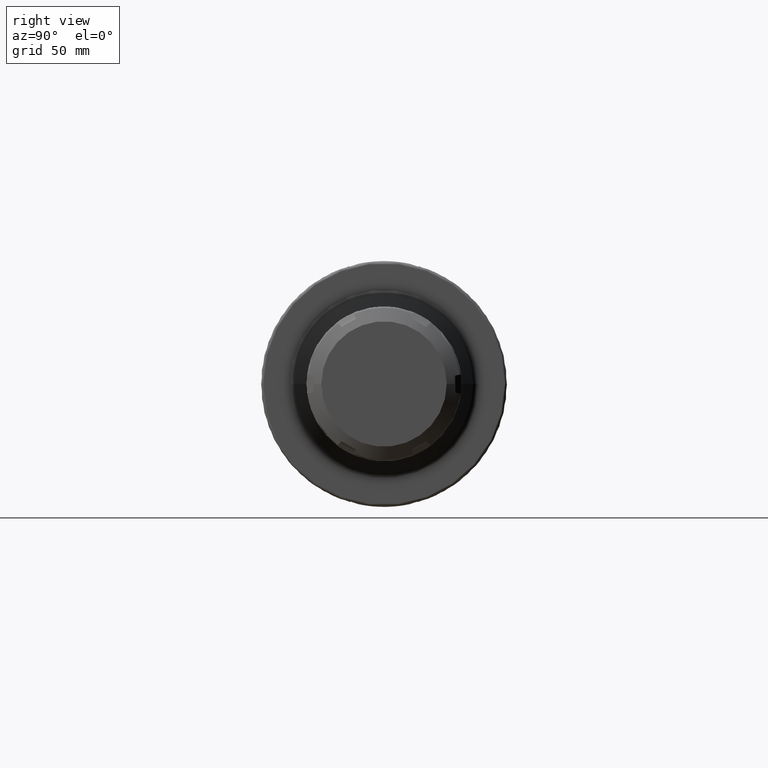
[diagram: clean part render]
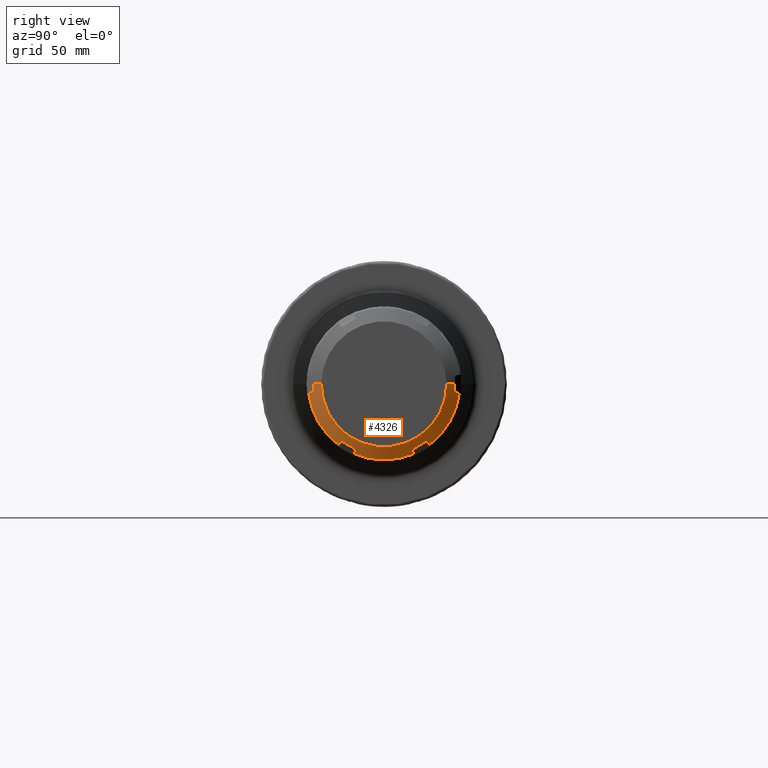
[diagram: same view with one face highlighted and labeled with its STEP entity id]
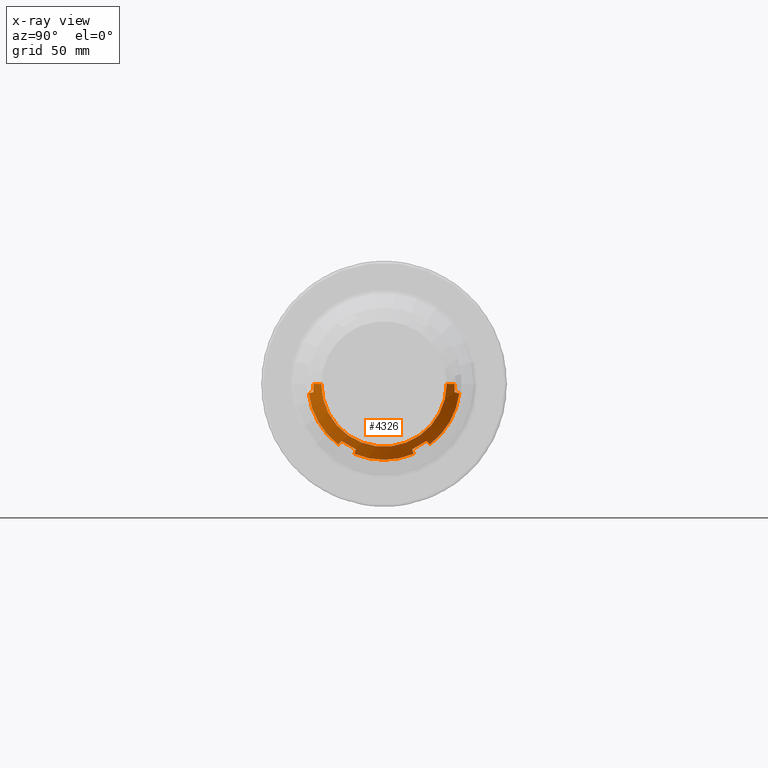
[diagram: x-ray of the same camera — body ghosted, the highlighted face saturated]
A machine part, right view. The second image highlights one B-rep face of the part: STEP entity #4326.
The next image is the same camera in x-ray: the body ghosted, the highlighted face saturated — about 0% of this face is hidden behind the body in this view.
In plain terms, the highlighted conical surface has half-angle 60 deg.
Its self-contained STEP definition (entity closure, byte-faithful):
#3456=CARTESIAN_POINT('',(2.351130782476E1,1.727618510266E1,-2.322323035877E1));
#3457=CARTESIAN_POINT('',(2.332842823305E1,1.749804769833E1,-2.345297580209E1));
#3458=CARTESIAN_POINT('',(2.295978520802E1,1.794515018410E1,-2.391596397947E1));
#3459=CARTESIAN_POINT('',(2.258538211756E1,1.839901028735E1,-2.438594987460E1));
#3460=CARTESIAN_POINT('',(2.239674230313E1,1.862763043938E1,-2.462269297237E1));
#3462=CARTESIAN_POINT('',(2.351130782476E1,1.147381489730E1,-2.657323035877E1));
#3463=CARTESIAN_POINT('',(2.356105051412E1,1.211849164162E1,-2.620102606690E1));
#3464=CARTESIAN_POINT('',(2.362777625606E1,1.340784245763E1,-2.545661902620E1));
#3465=CARTESIAN_POINT('',(2.362777583851E1,1.534217003691E1,-2.433983447760E1));
#3466=CARTESIAN_POINT('',(2.356105010187E1,1.663151370114E1,-2.359543156598E1));
#3467=CARTESIAN_POINT('',(2.351130782476E1,1.727618510266E1,-2.322323035877E1));
#3469=CARTESIAN_POINT('',(2.239674230313E1,1.201006240397E1,-2.844334765900E1));
#3470=CARTESIAN_POINT('',(2.258533438069E1,1.191936989944E1,-2.812706530876E1));
#3471=CARTESIAN_POINT('',(2.295968976826E1,1.173930318813E1,-2.749909805885E1));
#3472=CARTESIAN_POINT('',(2.332838053240E1,1.156187195180E1,-2.688032180249E1));
#3473=CARTESIAN_POINT('',(2.351130782476E1,1.147381489730E1,-2.657323035877E1));
#3475=CARTESIAN_POINT('',(2.239674230313E1,0.E0,0.E0));
#3476=DIRECTION('',(-1.E0,0.E0,0.E0));
#3477=DIRECTION('',(0.E0,3.889898754327E-1,-9.212420294422E-1));
#3478=AXIS2_PLACEMENT_3D('',#3475,#3476,#3477);
#3480=CARTESIAN_POINT('',(2.351130782476E1,-1.147381489730E1,
-2.657323035877E1));
#3481=CARTESIAN_POINT('',(2.332842823305E1,-1.156184898978E1,
-2.688024172443E1));
#3482=CARTESIAN_POINT('',(2.295978520802E1,-1.173925727016E1,
-2.749893792389E1));
#3483=CARTESIAN_POINT('',(2.258538211756E1,-1.191934694315E1,
-2.812698525064E1));
#3484=CARTESIAN_POINT('',(2.239674230313E1,-1.201006240397E1,
-2.844334765900E1));
#3486=CARTESIAN_POINT('',(2.351130782476E1,-1.727618510266E1,
-2.322323035877E1));
#3487=CARTESIAN_POINT('',(2.356105051412E1,-1.663150835835E1,
-2.359543465064E1));
#3488=CARTESIAN_POINT('',(2.362777625606E1,-1.534215754233E1,
-2.433984169135E1));
#3489=CARTESIAN_POINT('',(2.362777583851E1,-1.340782996305E1,
-2.545662623995E1));
#3490=CARTESIAN_POINT('',(2.356105010187E1,-1.211848629883E1,
-2.620102915156E1));
#3491=CARTESIAN_POINT('',(2.351130782476E1,-1.147381489730E1,
-2.657323035877E1));
#3493=CARTESIAN_POINT('',(2.239674230313E1,-1.862763043938E1,
-2.462269297237E1));
#3494=CARTESIAN_POINT('',(2.258533438069E1,-1.839906814157E1,
-2.438600978440E1));
#3495=CARTESIAN_POINT('',(2.295968976826E1,-1.794526590606E1,
-2.391608381307E1));
#3496=CARTESIAN_POINT('',(2.332838053240E1,-1.749810556696E1,
-2.345303572681E1));
#3497=CARTESIAN_POINT('',(2.351130782476E1,-1.727618510266E1,
-2.322323035877E1));
#3499=CARTESIAN_POINT('',(2.239674230313E1,0.E0,0.E0));
#3500=DIRECTION('',(-1.E0,0.E0,0.E0));
#3501=DIRECTION('',(0.E0,-6.033240628145E-1,-7.974961286608E-1));
#3502=AXIS2_PLACEMENT_3D('',#3499,#3500,#3501);
#3504=CARTESIAN_POINT('',(2.351130782476E1,-2.874999999997E1,-3.35E0));
#3505=CARTESIAN_POINT('',(2.332842823305E1,-2.905989668812E1,
-3.427265922344E0));
#3506=CARTESIAN_POINT('',(2.295978520802E1,-2.968440745426E1,
-3.582973944421E0));
#3507=CARTESIAN_POINT('',(2.258538211756E1,-3.031835723049E1,
-3.741035376033E0));
#3508=CARTESIAN_POINT('',(2.239674230313E1,-3.063769284335E1,
-3.820654686622E0));
#3510=CARTESIAN_POINT('',(2.362361162515E1,-2.874999999997E1,0.E0));
#3511=CARTESIAN_POINT('',(2.362361162515E1,-2.874999999997E1,
-3.723033754199E-1));
#3512=CARTESIAN_POINT('',(2.361525781864E1,-2.874999999997E1,
-1.116855572672E0));
#3513=CARTESIAN_POINT('',(2.357773435590E1,-2.874999999997E1,
-2.233506677949E0));
#3514=CARTESIAN_POINT('',(2.353617556265E1,-2.874999999997E1,
-2.977849684408E0));
#3515=CARTESIAN_POINT('',(2.351130782476E1,-2.874999999997E1,-3.35E0));
#3517=DIRECTION('',(-5.E-1,-8.660254037844E-1,0.E0));
#3518=VECTOR('',#3517,3.752776749692E0);
#3519=CARTESIAN_POINT('',(2.55E1,-2.55E1,0.E0));
#3520=LINE('',#3519,#3518);
#3521=CARTESIAN_POINT('',(2.55E1,0.E0,0.E0));
#3522=DIRECTION('',(-1.E0,0.E0,0.E0));
#3523=DIRECTION('',(0.E0,1.E0,0.E0));
#3524=AXIS2_PLACEMENT_3D('',#3521,#3522,#3523);
#3526=DIRECTION('',(-5.E-1,8.660254037844E-1,0.E0));
#3527=VECTOR('',#3526,3.752776749692E0);
#3528=CARTESIAN_POINT('',(2.55E1,2.55E1,0.E0));
#3529=LINE('',#3528,#3527);
#3530=CARTESIAN_POINT('',(2.351130782476E1,2.874999999997E1,-3.35E0));
#3531=CARTESIAN_POINT('',(2.353617695757E1,2.874999999997E1,-2.977828809184E0));
#3532=CARTESIAN_POINT('',(2.357773662637E1,2.874999999997E1,-2.233458033279E0));
#3533=CARTESIAN_POINT('',(2.361525848375E1,2.874999999997E1,-1.116817767542E0));
#3534=CARTESIAN_POINT('',(2.362361162515E1,2.874999999997E1,
-3.722872262064E-1));
#3535=CARTESIAN_POINT('',(2.362361162515E1,2.874999999997E1,0.E0));
#3537=CARTESIAN_POINT('',(2.239674230313E1,3.063769284335E1,-3.820654686622E0));
#3538=CARTESIAN_POINT('',(2.258533438069E1,3.031843804101E1,-3.741055524357E0));
#3539=CARTESIAN_POINT('',(2.295968976826E1,2.968456909419E1,-3.583014245782E0));
#3540=CARTESIAN_POINT('',(2.332838053240E1,2.905997751876E1,-3.427286075687E0));
#3541=CARTESIAN_POINT('',(2.351130782476E1,2.874999999997E1,-3.35E0));
#3543=CARTESIAN_POINT('',(2.239674230313E1,0.E0,0.E0));
#3544=DIRECTION('',(-1.E0,0.E0,0.E0));
#3545=DIRECTION('',(0.E0,9.923139382473E-1,-1.237459007814E-1));
#3546=AXIS2_PLACEMENT_3D('',#3543,#3544,#3545);
#3807=CARTESIAN_POINT('',(2.362361162515E1,-2.874999999997E1,0.E0));
#3874=CARTESIAN_POINT('',(2.362361162515E1,2.874999999997E1,0.E0));
#4164=CARTESIAN_POINT('',(2.55E1,2.55E1,0.E0));
#4165=CARTESIAN_POINT('',(2.55E1,-2.55E1,0.E0));
#4166=VERTEX_POINT('',#4164);
#4167=VERTEX_POINT('',#4165);
#4178=VERTEX_POINT('',#3874);
#4179=VERTEX_POINT('',#3530);
#4180=VERTEX_POINT('',#3537);
#4233=VERTEX_POINT('',#3807);
#4235=VERTEX_POINT('',#3504);
#4236=VERTEX_POINT('',#3508);
#4246=VERTEX_POINT('',#3480);
#4247=VERTEX_POINT('',#3484);
#4248=VERTEX_POINT('',#3486);
#4249=VERTEX_POINT('',#3493);
#4261=VERTEX_POINT('',#3456);
#4262=VERTEX_POINT('',#3460);
#4263=VERTEX_POINT('',#3462);
#4264=VERTEX_POINT('',#3469);
#4288=CARTESIAN_POINT('',(2.394837115156E1,0.E0,0.E0));
#4289=DIRECTION('',(-1.E0,0.E0,0.E0));
#4290=DIRECTION('',(0.E0,1.E0,0.E0));
#4291=AXIS2_PLACEMENT_3D('',#4288,#4289,#4290);
#4292=CONICAL_SURFACE('',#4291,2.818749999998E1,6.E1);
#4294=ORIENTED_EDGE('',*,*,#4293,.F.);
#4296=ORIENTED_EDGE('',*,*,#4295,.F.);
#4298=ORIENTED_EDGE('',*,*,#4297,.F.);
#4300=ORIENTED_EDGE('',*,*,#4299,.T.);
#4302=ORIENTED_EDGE('',*,*,#4301,.F.);
#4304=ORIENTED_EDGE('',*,*,#4303,.F.);
#4306=ORIENTED_EDGE('',*,*,#4305,.F.);
#4308=ORIENTED_EDGE('',*,*,#4307,.T.);
#4310=ORIENTED_EDGE('',*,*,#4309,.F.);
#4312=ORIENTED_EDGE('',*,*,#4311,.F.);
#4314=ORIENTED_EDGE('',*,*,#4313,.F.);
#4315=ORIENTED_EDGE('',*,*,#4281,.F.);
#4317=ORIENTED_EDGE('',*,*,#4316,.T.);
#4319=ORIENTED_EDGE('',*,*,#4318,.F.);
#4321=ORIENTED_EDGE('',*,*,#4320,.F.);
#4323=ORIENTED_EDGE('',*,*,#4322,.T.);
#4324=EDGE_LOOP('',(#4294,#4296,#4298,#4300,#4302,#4304,#4306,#4308,#4310,#4312,
#4314,#4315,#4317,#4319,#4321,#4323));
#4325=FACE_OUTER_BOUND('',#4324,.F.);
#4326=ADVANCED_FACE('',(#4325),#4292,.T.);
#3461=B_SPLINE_CURVE_WITH_KNOTS('',3,(#3456,#3457,#3458,#3459,#3460),
.UNSPECIFIED.,.F.,.F.,(4,1,4),(0.E0,5.E-1,1.E0),.UNSPECIFIED.);
#3468=B_SPLINE_CURVE_WITH_KNOTS('',3,(#3462,#3463,#3464,#3465,#3466,#3467),
.UNSPECIFIED.,.F.,.F.,(4,1,1,4),(0.E0,3.333333333333E-1,6.666666666667E-1,1.E0),
.UNSPECIFIED.);
#3474=B_SPLINE_CURVE_WITH_KNOTS('',3,(#3469,#3470,#3471,#3472,#3473),
.UNSPECIFIED.,.F.,.F.,(4,1,4),(0.E0,5.E-1,1.E0),.UNSPECIFIED.);
#3479=CIRCLE('',#3478,3.087499999997E1);
#3485=B_SPLINE_CURVE_WITH_KNOTS('',3,(#3480,#3481,#3482,#3483,#3484),
.UNSPECIFIED.,.F.,.F.,(4,1,4),(0.E0,5.E-1,1.E0),.UNSPECIFIED.);
#3492=B_SPLINE_CURVE_WITH_KNOTS('',3,(#3486,#3487,#3488,#3489,#3490,#3491),
.UNSPECIFIED.,.F.,.F.,(4,1,1,4),(0.E0,3.333333333333E-1,6.666666666667E-1,1.E0),
.UNSPECIFIED.);
#3498=B_SPLINE_CURVE_WITH_KNOTS('',3,(#3493,#3494,#3495,#3496,#3497),
.UNSPECIFIED.,.F.,.F.,(4,1,4),(0.E0,5.E-1,1.E0),.UNSPECIFIED.);
#3503=CIRCLE('',#3502,3.087499999997E1);
#3509=B_SPLINE_CURVE_WITH_KNOTS('',3,(#3504,#3505,#3506,#3507,#3508),
.UNSPECIFIED.,.F.,.F.,(4,1,4),(0.E0,5.E-1,1.E0),.UNSPECIFIED.);
#3516=B_SPLINE_CURVE_WITH_KNOTS('',3,(#3510,#3511,#3512,#3513,#3514,#3515),
.UNSPECIFIED.,.F.,.F.,(4,1,1,4),(0.E0,3.333333333333E-1,6.666666666667E-1,1.E0),
.UNSPECIFIED.);
#3525=CIRCLE('',#3524,2.55E1);
#3536=B_SPLINE_CURVE_WITH_KNOTS('',3,(#3530,#3531,#3532,#3533,#3534,#3535),
.UNSPECIFIED.,.F.,.F.,(4,1,1,4),(0.E0,3.333333333333E-1,6.666666666667E-1,1.E0),
.UNSPECIFIED.);
#3542=B_SPLINE_CURVE_WITH_KNOTS('',3,(#3537,#3538,#3539,#3540,#3541),
.UNSPECIFIED.,.F.,.F.,(4,1,4),(0.E0,5.E-1,1.E0),.UNSPECIFIED.);
#3547=CIRCLE('',#3546,3.087499999997E1);
#4281=EDGE_CURVE('',#4166,#4167,#3525,.T.);
#4293=EDGE_CURVE('',#4261,#4262,#3461,.T.);
#4295=EDGE_CURVE('',#4263,#4261,#3468,.T.);
#4297=EDGE_CURVE('',#4264,#4263,#3474,.T.);
#4299=EDGE_CURVE('',#4264,#4247,#3479,.T.);
#4301=EDGE_CURVE('',#4246,#4247,#3485,.T.);
#4303=EDGE_CURVE('',#4248,#4246,#3492,.T.);
#4305=EDGE_CURVE('',#4249,#4248,#3498,.T.);
#4307=EDGE_CURVE('',#4249,#4236,#3503,.T.);
#4309=EDGE_CURVE('',#4235,#4236,#3509,.T.);
#4311=EDGE_CURVE('',#4233,#4235,#3516,.T.);
#4313=EDGE_CURVE('',#4167,#4233,#3520,.T.);
#4316=EDGE_CURVE('',#4166,#4178,#3529,.T.);
#4318=EDGE_CURVE('',#4179,#4178,#3536,.T.);
#4320=EDGE_CURVE('',#4180,#4179,#3542,.T.);
#4322=EDGE_CURVE('',#4180,#4262,#3547,.T.);